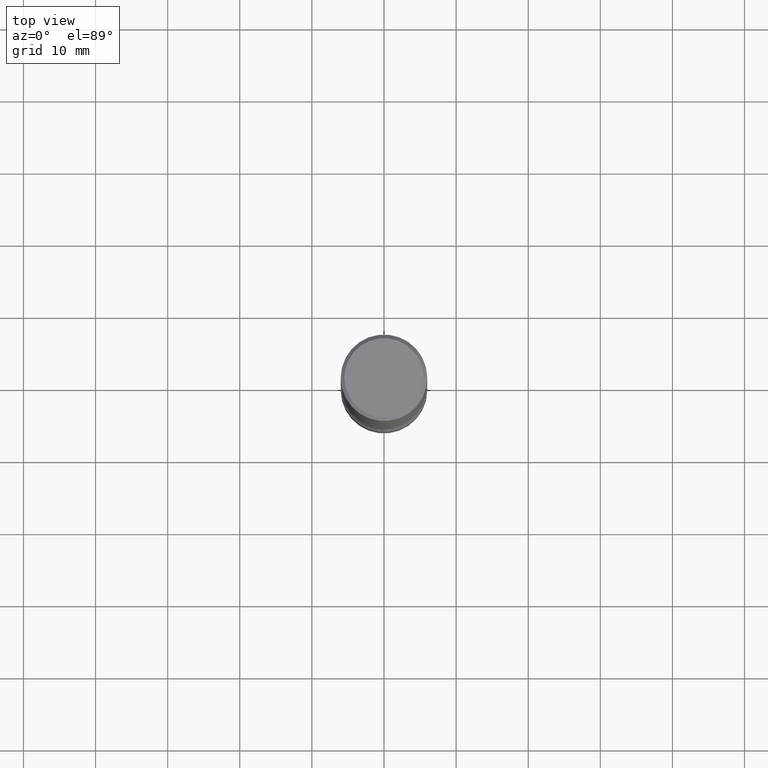
[diagram: clean part render]
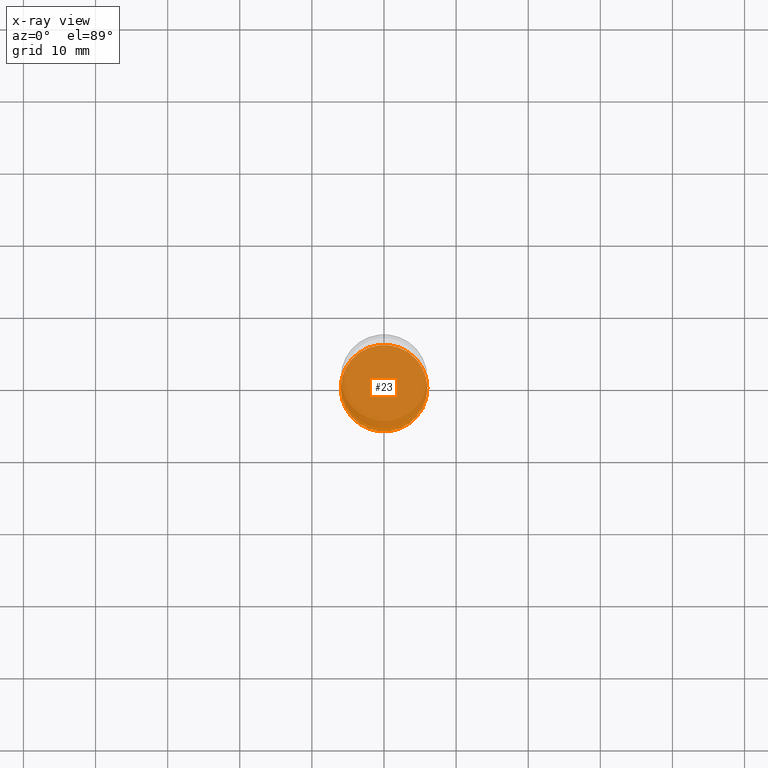
[diagram: x-ray — body ghosted, one internal face saturated and labeled with its STEP entity id]
A machine part, top view, then the same camera in x-ray: the body is ghosted and one INTERNAL B-rep face — a face not visible from any outside direction — is saturated and labeled: STEP entity #23.
In plain terms, the highlighted planar face has unit normal (0, -0, -1).
Its self-contained STEP definition (entity closure, byte-faithful):
#14 = DIRECTION ( 'NONE',  ( 1.000000000000000000, -6.982962677686268288E-15, 0.000000000000000000 ) ) ;
#23 = ADVANCED_FACE ( 'NONE', ( #415 ), #64, .F. ) ;
#46 = AXIS2_PLACEMENT_3D ( 'NONE', #540, #234, #324 ) ;
#64 = PLANE ( 'NONE',  #46 ) ;
#130 = AXIS2_PLACEMENT_3D ( 'NONE', #188, #308, #14 ) ;
#140 = EDGE_LOOP ( 'NONE', ( #270, #187 ) ) ;
#169 = CARTESIAN_POINT ( 'NONE',  ( 8.087409888934865187E-29, -1.154667793568816566E-14, -3.307099999999999707 ) ) ;
#187 = ORIENTED_EDGE ( 'NONE', *, *, #451, .T. ) ;
#188 = CARTESIAN_POINT ( 'NONE',  ( 8.087409888934865187E-29, -1.154667793568816566E-14, -3.307099999999999707 ) ) ;
#204 = AXIS2_PLACEMENT_3D ( 'NONE', #169, #338, #471 ) ;
#234 = DIRECTION ( 'NONE',  ( 2.438088387897960049E-29, -3.491481338843145188E-15, -1.000000000000000000 ) ) ;
#270 = ORIENTED_EDGE ( 'NONE', *, *, #482, .T. ) ;
#295 = CIRCLE ( 'NONE', #130, 0.2362000000000001598 ) ;
#308 = DIRECTION ( 'NONE',  ( -2.445468806185136597E-29, 3.491481338843145583E-15, 1.000000000000000000 ) ) ;
#324 = DIRECTION ( 'NONE',  ( -1.000000000000000000, 6.982962677686265922E-15, -4.876176775795935793E-29 ) ) ;
#338 = DIRECTION ( 'NONE',  ( -2.445468806185136597E-29, 3.491481338843145583E-15, 1.000000000000000000 ) ) ;
#354 = CARTESIAN_POINT ( 'NONE',  ( 0.2362000000000001598, -1.319605372015766376E-14, -3.307099999999999707 ) ) ;
#394 = VERTEX_POINT ( 'NONE', #504 ) ;
#415 = FACE_OUTER_BOUND ( 'NONE', #140, .T. ) ;
#443 = CIRCLE ( 'NONE', #204, 0.2362000000000001598 ) ;
#451 = EDGE_CURVE ( 'NONE', #394, #497, #295, .T. ) ;
#471 = DIRECTION ( 'NONE',  ( 1.000000000000000000, -6.982962677686268288E-15, 0.000000000000000000 ) ) ;
#482 = EDGE_CURVE ( 'NONE', #497, #394, #443, .T. ) ;
#497 = VERTEX_POINT ( 'NONE', #354 ) ;
#504 = CARTESIAN_POINT ( 'NONE',  ( -0.2362000000000002153, -1.091302721040467959E-14, -3.307099999999999707 ) ) ;
#540 = CARTESIAN_POINT ( 'NONE',  ( 8.087409888934865187E-29, -1.154667793568816566E-14, -3.307099999999999707 ) ) ;